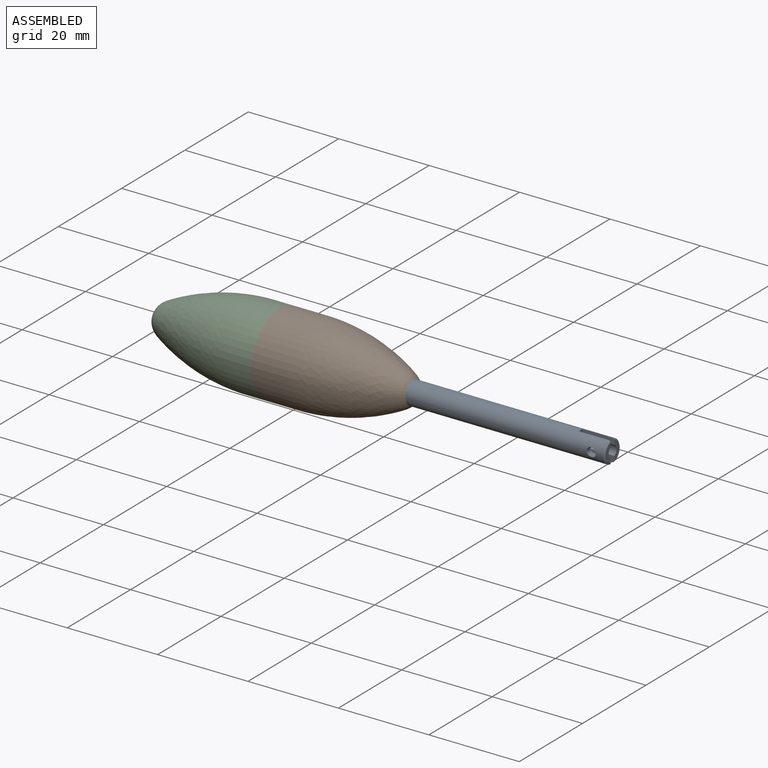
[diagram: assembled view]
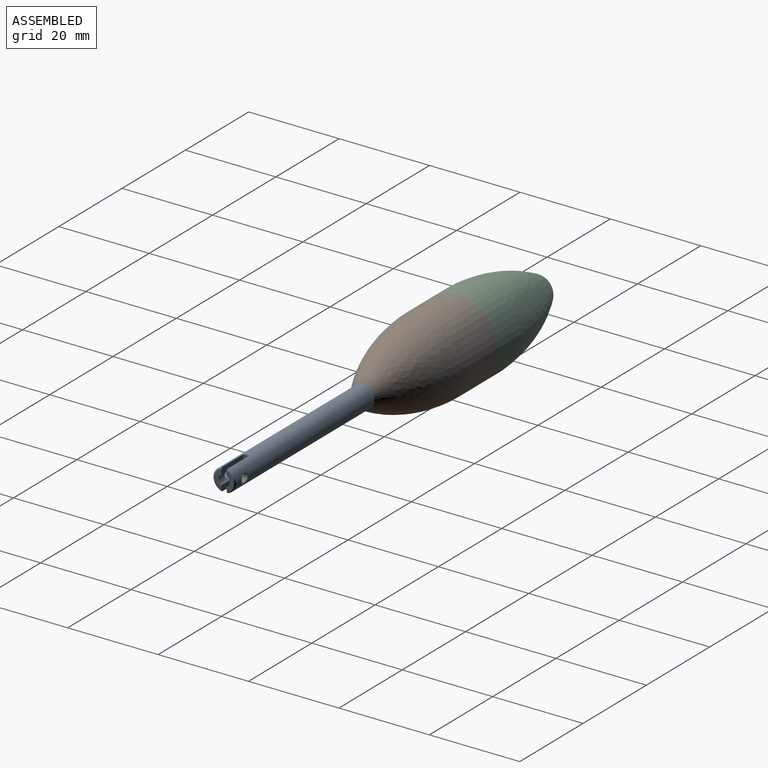
[diagram: assembled view, second angle]
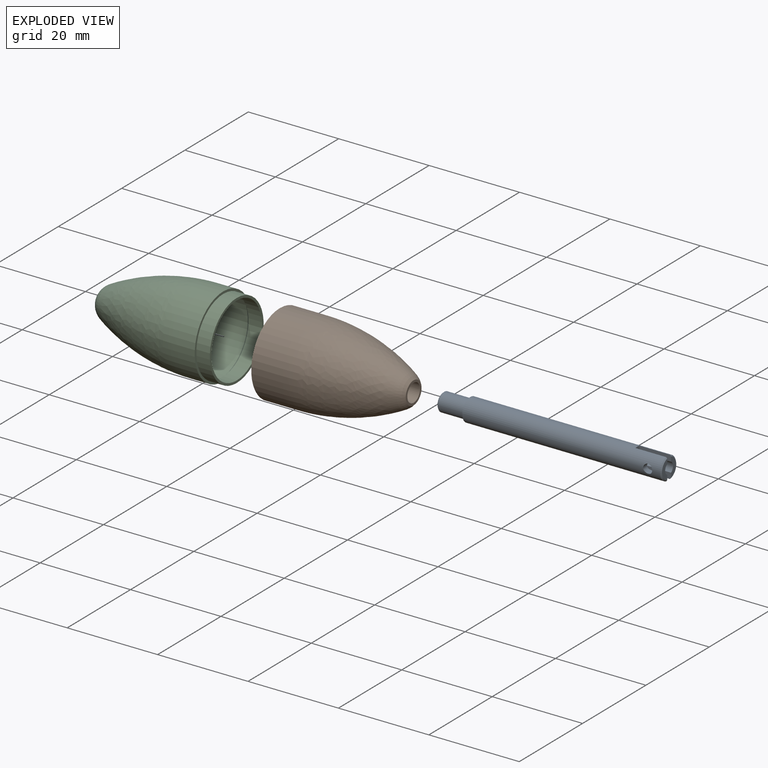
[diagram: exploded view]
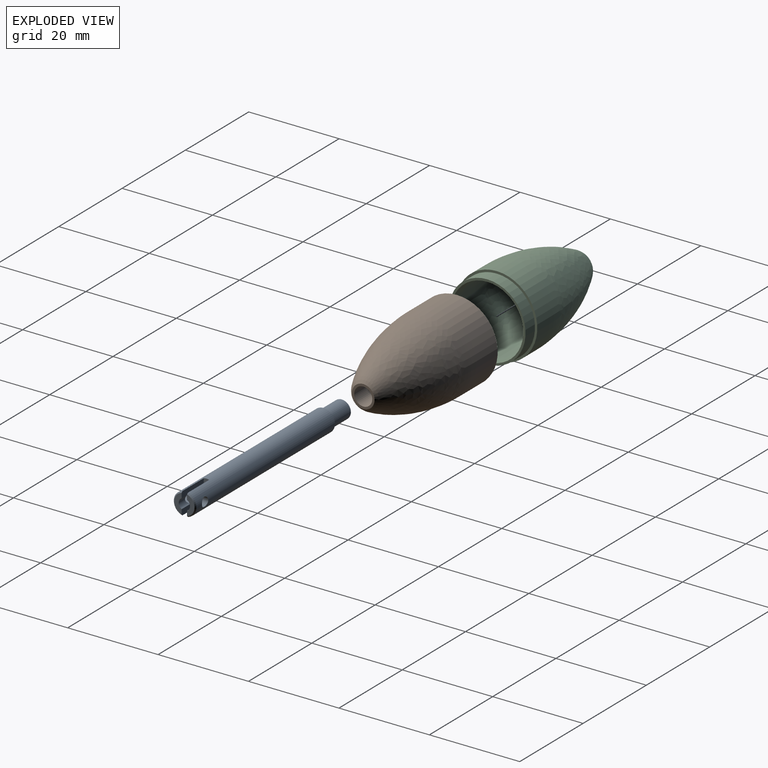
[diagram: exploded view, second angle]
ASSEMBLY  parts=3 mates=2
PART A: 18 faces, bbox 50x5x5 mm
  f0: cylinder r=1.25mm len=50mm, axis (1,0,0), area 368.2mm2, adj f1,f4,f5,f10,f11,f12,f13,f14
  f1: plane 4.34x1.65mm, normal (1,0,0), area 4.3mm2, adj f0,f8,f13,f17
  f2: cylinder r=2.5mm len=43.75mm, axis (1,0,0), area 664.4mm2, adj f3,f6,f8,f10,f11,f12,f13,f14
  f3: cone r=2.25mm half-angle=45deg, axis (-1,0,0), area 2.2mm2, adj f2,f5,f12,f16
  f4: plane 3.5x3.5mm, normal (-1,0,0), area 4.7mm2, adj f0,f9
  f5: plane 4.34x1.65mm, normal (1,0,0), area 4.3mm2, adj f0,f3,f12,f16
  f6: plane 5x5mm, normal (-1,0,0), area 7.1mm2, adj f2,f7
  f7: cylinder r=2mm len=5.75mm, axis (1,0,0), area 72.3mm2, adj f6,f9
  f8: cone r=2.25mm half-angle=45deg, axis (-1,0,0), area 2.2mm2, adj f1,f2,f13,f17
  f9: cone r=2mm half-angle=45deg, axis (1,0,0), area 4.2mm2, adj f4,f7
  f10: cylinder r=1mm len=2mm, axis (0,-1,0), area 8mm2, adj f0,f2
  f11: cylinder r=1mm len=2mm, axis (0,-1,0), area 8mm2, adj f0,f2
  f12: plane 7x1.33mm, normal (0,1,0), area 9.3mm2, adj f0,f2,f3,f5,f14
  f13: plane 7x1.33mm, normal (0,-1,0), area 9.3mm2, adj f0,f1,f2,f8,f14
  f14: plane 1.4x1.2mm, normal (1,0,0), area 1.5mm2, adj f0,f2,f12,f13
  f15: plane 1.4x1.2mm, normal (1,0,0), area 1.5mm2, adj f0,f2,f16,f17
  f16: plane 7x1.33mm, normal (0,1,0), area 9.3mm2, adj f0,f2,f3,f5,f15
  f17: plane 7x1.33mm, normal (0,-1,0), area 9.3mm2, adj f0,f1,f2,f8,f15
PART B: 9 faces, bbox 29.6x18x18 mm
  f0: plane 18x18mm, normal (-1,0,0), area 27.5mm2, adj f4,f8
  f1: plane 5.01x5.01mm, normal (1,0,0), area 7.1mm2, adj f2,f5
  f2: sphere r=4mm, area 30.3mm2, adj f1,f3
  f3: revolved ~21.54x18mm, area 1009.6mm2, adj f2,f4
  f4: cylinder r=9mm len=18mm, axis (1,0,0), area 389.1mm2, adj f0,f3
  f5: cylinder r=2mm len=6mm, axis (-1,0,0), area 75.4mm2, adj f1,f6
  f6: revolved ~14.99x14.99mm, area 313.7mm2, adj f5,f7
  f7: revolved ~17x17mm, area 486.1mm2, adj f6,f8
  f8: cylinder r=8.5mm len=17mm, axis (-1,0,0), area 367.4mm2, adj f0,f7
PART C: 11 faces, bbox 30.5x18x18 mm
  f0: plane 17x17mm, normal (1,0,0), area 25.9mm2, adj f1,f6
  f1: cylinder r=8.5mm len=17mm, axis (-1,0,0), area 160.2mm2, adj f0,f2
  f2: plane 18x18mm, normal (1,0,0), area 27.5mm2, adj f1,f3
  f3: cylinder r=9mm len=18mm, axis (-1,0,0), area 219.3mm2, adj f2,f4
  f4: revolved ~21.54x18mm, area 1009.6mm2, adj f3,f5
  f5: sphere r=4mm, area 52.4mm2, adj f4
  f6: cylinder r=8mm len=16mm, axis (-1,0,0), area 150.8mm2, adj f0,f10
  f7: cylinder r=8.5mm len=17mm, axis (-1,0,0), area 180.4mm2, adj f8,f10
  f8: revolved ~21.3x17mm, area 931.5mm2, adj f7,f9
  f9: sphere r=3.5mm, area 40.1mm2, adj f8
  f10: cone r=8mm half-angle=45deg, axis (-1,0,0), area 36.7mm2, adj f6,f7
PLACE A at identity
PLACE B at identity fixed
PLACE C at identity
MATE fastened C.f10 <-> B.f4  axis (1,0,0) through (-3,0,0)mm
MATE fastened A.f0 <-> B.f4  axis (-1,0,0) through (26.62,0,0)mm
